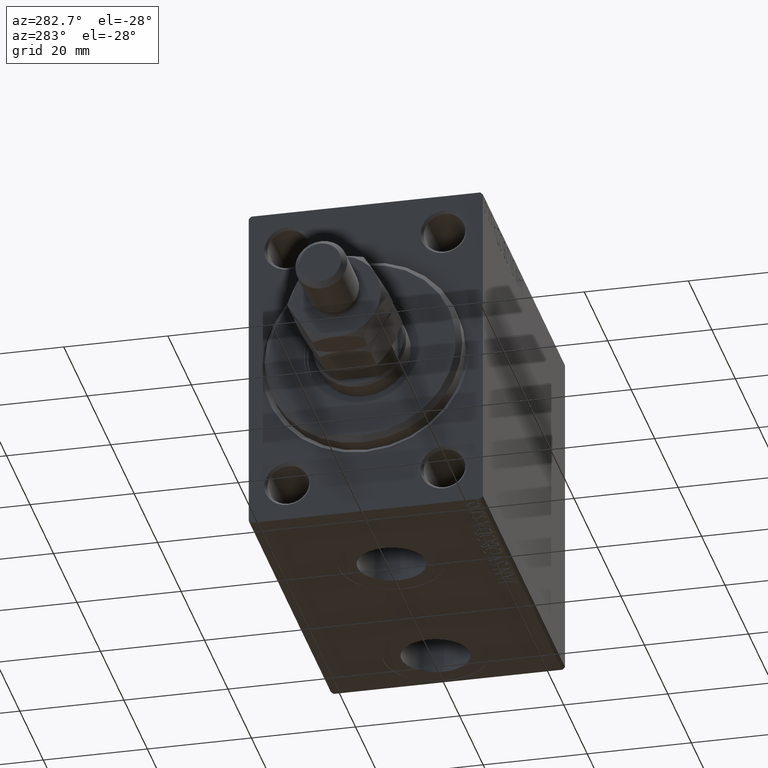
[diagram: clean part render]
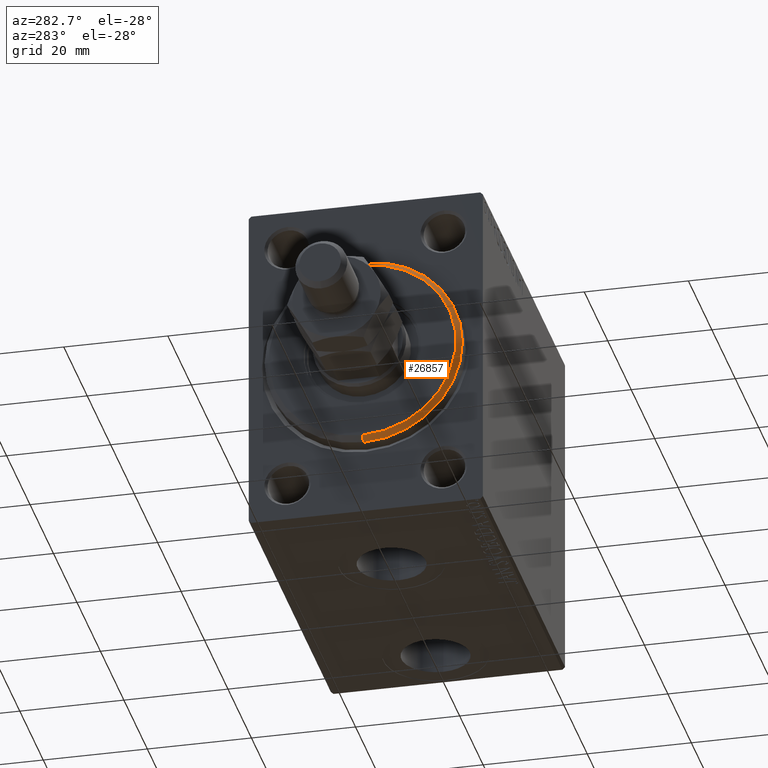
[diagram: same view with one face highlighted and labeled with its STEP entity id]
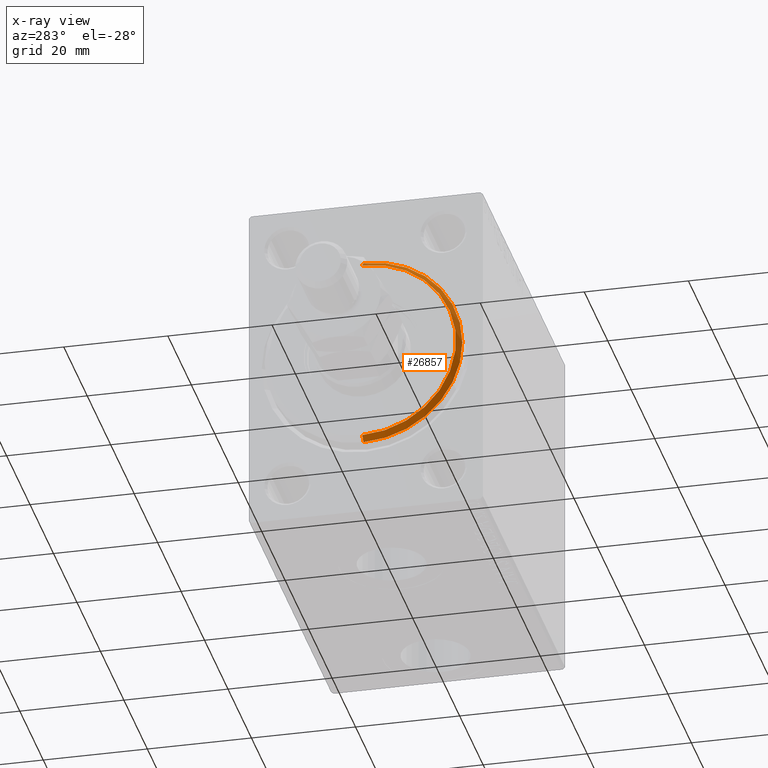
[diagram: x-ray of the same camera — body ghosted, the highlighted face saturated]
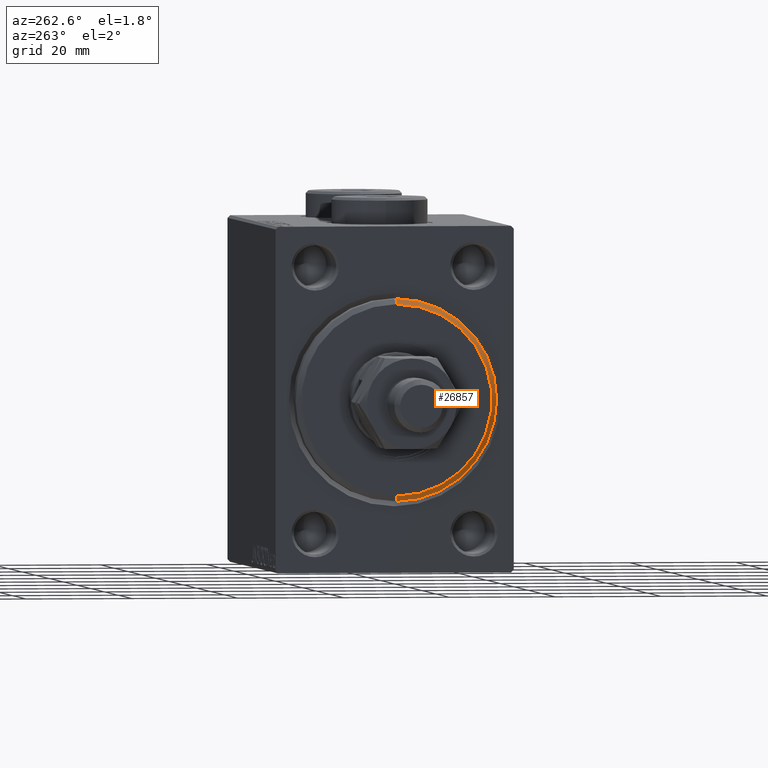
[diagram: same view with one face highlighted and labeled with its STEP entity id]
A machine part, auxiliary view. The second image highlights one B-rep face of the part: STEP entity #26857.
The next image is the same camera in x-ray: the body ghosted, the highlighted face saturated — about 1% of this face is hidden behind the body in this view.
A second angle (auxiliary view) of the same face is appended — the face is thin or edge-on in the first view.
In plain terms, the highlighted conical surface has half-angle 45 deg.
Its self-contained STEP definition (entity closure, byte-faithful):
#284 = DIRECTION ( 'NONE',  ( -0.7071067811865487940, 0.000000000000000000, 0.7071067811865463515 ) ) ;
#1261 = ORIENTED_EDGE ( 'NONE', *, *, #15266, .F. ) ;
#3506 = VECTOR ( 'NONE', #40474, 1000.000000000000000 ) ;
#4715 = CARTESIAN_POINT ( 'NONE',  ( 3.000000000000000000, 2.204364238465235033E-15, -17.99999999999999645 ) ) ;
#5257 = AXIS2_PLACEMENT_3D ( 'NONE', #19859, #41986, #34385 ) ;
#5806 = EDGE_CURVE ( 'NONE', #18167, #7429, #33338, .T. ) ;
#7429 = VERTEX_POINT ( 'NONE', #33145 ) ;
#8850 = DIRECTION ( 'NONE',  ( -1.000000000000000000, 0.000000000000000000, 0.000000000000000000 ) ) ;
#9747 = FACE_OUTER_BOUND ( 'NONE', #36091, .T. ) ;
#11637 = CARTESIAN_POINT ( 'NONE',  ( 1.999999999999992228, 0.000000000000000000, 19.00000000000000000 ) ) ;
#12436 = CARTESIAN_POINT ( 'NONE',  ( 1.999999999999992228, 0.000000000000000000, 0.000000000000000000 ) ) ;
#12843 = CONICAL_SURFACE ( 'NONE', #15857, 17.99999999999999645, 0.7853981633974466137 ) ;
#15266 = EDGE_CURVE ( 'NONE', #35799, #7429, #42490, .T. ) ;
#15857 = AXIS2_PLACEMENT_3D ( 'NONE', #24302, #42624, #38820 ) ;
#18167 = VERTEX_POINT ( 'NONE', #24619 ) ;
#19845 = DIRECTION ( 'NONE',  ( 0.000000000000000000, 0.000000000000000000, -1.000000000000000000 ) ) ;
#19859 = CARTESIAN_POINT ( 'NONE',  ( 3.000000000000000000, 0.000000000000000000, 0.000000000000000000 ) ) ;
#21601 = ORIENTED_EDGE ( 'NONE', *, *, #5806, .T. ) ;
#24302 = CARTESIAN_POINT ( 'NONE',  ( 3.000000000000000000, 0.000000000000000000, 0.000000000000000000 ) ) ;
#24619 = CARTESIAN_POINT ( 'NONE',  ( 3.000000000000000000, 2.265596578422603002E-15, -17.99999999999999645 ) ) ;
#25021 = AXIS2_PLACEMENT_3D ( 'NONE', #12436, #8850, #19845 ) ;
#25809 = CIRCLE ( 'NONE', #5257, 17.99999999999999645 ) ;
#26857 = ADVANCED_FACE ( 'NONE', ( #9747 ), #12843, .T. ) ;
#28789 = VERTEX_POINT ( 'NONE', #45821 ) ;
#32903 = EDGE_CURVE ( 'NONE', #18167, #28789, #25809, .T. ) ;
#32978 = LINE ( 'NONE', #39650, #39038 ) ;
#33145 = CARTESIAN_POINT ( 'NONE',  ( 1.999999999999992228, 2.326828918379970970E-15, -19.00000000000000000 ) ) ;
#33338 = LINE ( 'NONE', #4715, #3506 ) ;
#34385 = DIRECTION ( 'NONE',  ( 0.000000000000000000, 0.000000000000000000, -1.000000000000000000 ) ) ;
#35799 = VERTEX_POINT ( 'NONE', #11637 ) ;
#36091 = EDGE_LOOP ( 'NONE', ( #44384, #21601, #1261, #47199 ) ) ;
#38820 = DIRECTION ( 'NONE',  ( 0.000000000000000000, 0.000000000000000000, 1.000000000000000000 ) ) ;
#39038 = VECTOR ( 'NONE', #284, 1000.000000000000000 ) ;
#39650 = CARTESIAN_POINT ( 'NONE',  ( 3.000000000000000000, 0.000000000000000000, 17.99999999999999645 ) ) ;
#40474 = DIRECTION ( 'NONE',  ( -0.7071067811865487940, 8.659560562354918067E-17, -0.7071067811865463515 ) ) ;
#41986 = DIRECTION ( 'NONE',  ( 1.000000000000000000, -0.000000000000000000, 0.000000000000000000 ) ) ;
#42490 = CIRCLE ( 'NONE', #25021, 19.00000000000000000 ) ;
#42624 = DIRECTION ( 'NONE',  ( -1.000000000000000000, 0.000000000000000000, 0.000000000000000000 ) ) ;
#44384 = ORIENTED_EDGE ( 'NONE', *, *, #32903, .F. ) ;
#45821 = CARTESIAN_POINT ( 'NONE',  ( 3.000000000000000000, 0.000000000000000000, 17.99999999999999645 ) ) ;
#46534 = EDGE_CURVE ( 'NONE', #28789, #35799, #32978, .T. ) ;
#47199 = ORIENTED_EDGE ( 'NONE', *, *, #46534, .F. ) ;